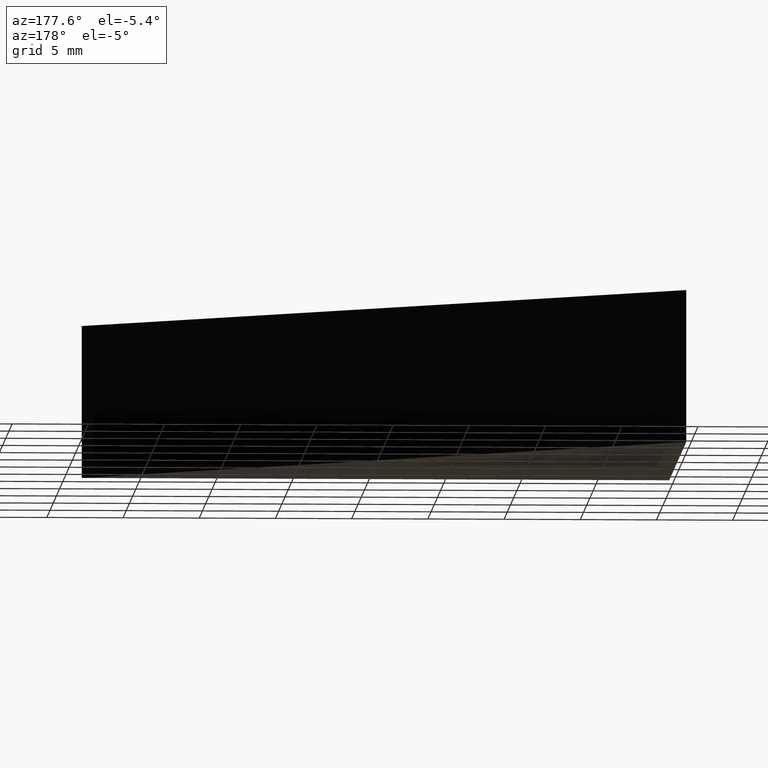
[diagram: clean part render]
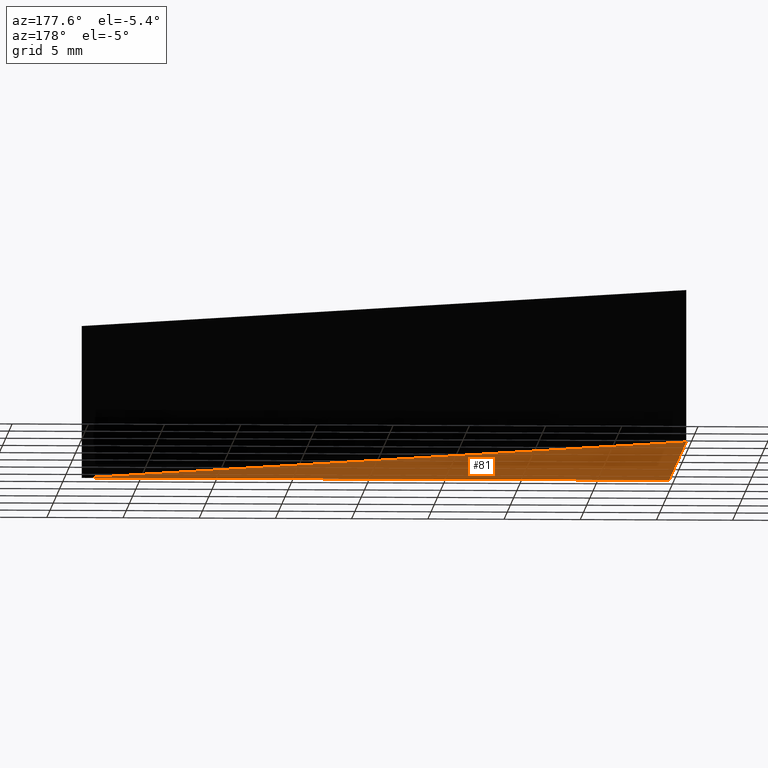
[diagram: same view with one face highlighted and labeled with its STEP entity id]
A machine part, auxiliary view. The second image highlights one B-rep face of the part: STEP entity #81.
In plain terms, the highlighted planar face has unit normal (0, 0, 1).
Its self-contained STEP definition (entity closure, byte-faithful):
#15=FACE_OUTER_BOUND('',#20,.T.);
#20=EDGE_LOOP('',(#58,#59,#60));
#25=LINE('',#139,#34);
#26=LINE('',#141,#35);
#27=LINE('',#142,#36);
#34=VECTOR('',#118,10.);
#35=VECTOR('',#119,10.);
#36=VECTOR('',#120,10.);
#43=VERTEX_POINT('',#137);
#44=VERTEX_POINT('',#138);
#45=VERTEX_POINT('',#140);
#49=EDGE_CURVE('',#43,#44,#25,.T.);
#50=EDGE_CURVE('',#45,#43,#26,.T.);
#51=EDGE_CURVE('',#44,#45,#27,.T.);
#58=ORIENTED_EDGE('',*,*,#49,.F.);
#59=ORIENTED_EDGE('',*,*,#50,.F.);
#60=ORIENTED_EDGE('',*,*,#51,.F.);
#76=PLANE('',#109);
#81=ADVANCED_FACE('',(#15),#76,.F.);
#109=AXIS2_PLACEMENT_3D('',#136,#116,#117);
#116=DIRECTION('center_axis',(0.,0.,1.));
#117=DIRECTION('ref_axis',(1.,0.,0.));
#118=DIRECTION('',(-0.822077020060832,0.569376301832016,0.));
#119=DIRECTION('',(1.,1.4399779826526E-16,0.));
#120=DIRECTION('',(1.72390993122469E-16,-1.,0.));
#136=CARTESIAN_POINT('Origin',(14.685854095565,8.76085409556497,-5.));
#137=CARTESIAN_POINT('',(38.55,4.44089209850063E-15,-5.));
#138=CARTESIAN_POINT('',(-3.33066907387547E-15,26.7,-5.));
#139=CARTESIAN_POINT('',(-3.33066907387547E-15,26.7,-5.));
#140=CARTESIAN_POINT('',(1.27217044249445E-15,-1.11022302462516E-15,-5.));
#141=CARTESIAN_POINT('',(38.55,4.44089209850063E-15,-5.));
#142=CARTESIAN_POINT('',(1.27217044249445E-15,-1.11022302462516E-15,-5.));